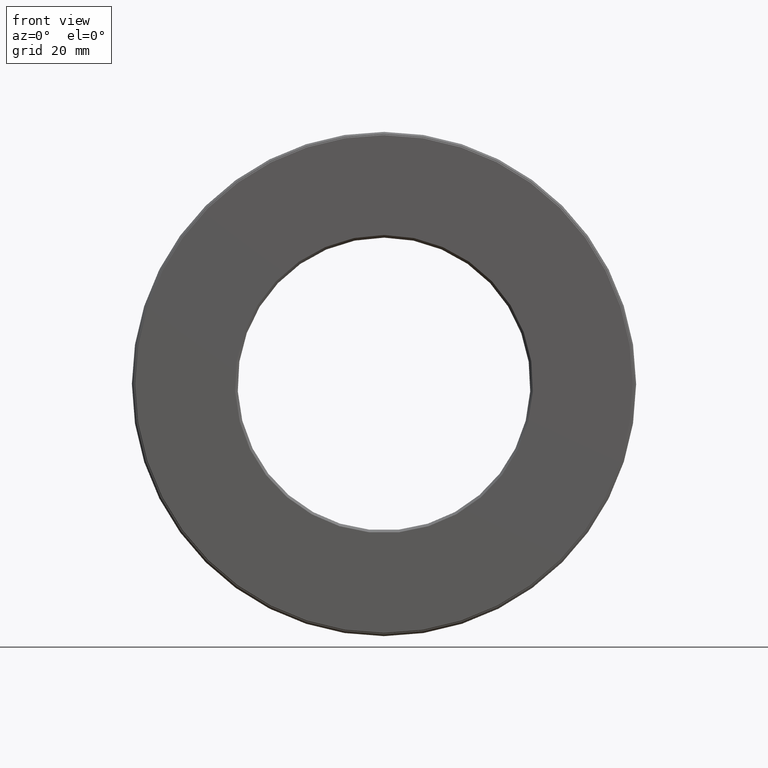
[diagram: clean part render]
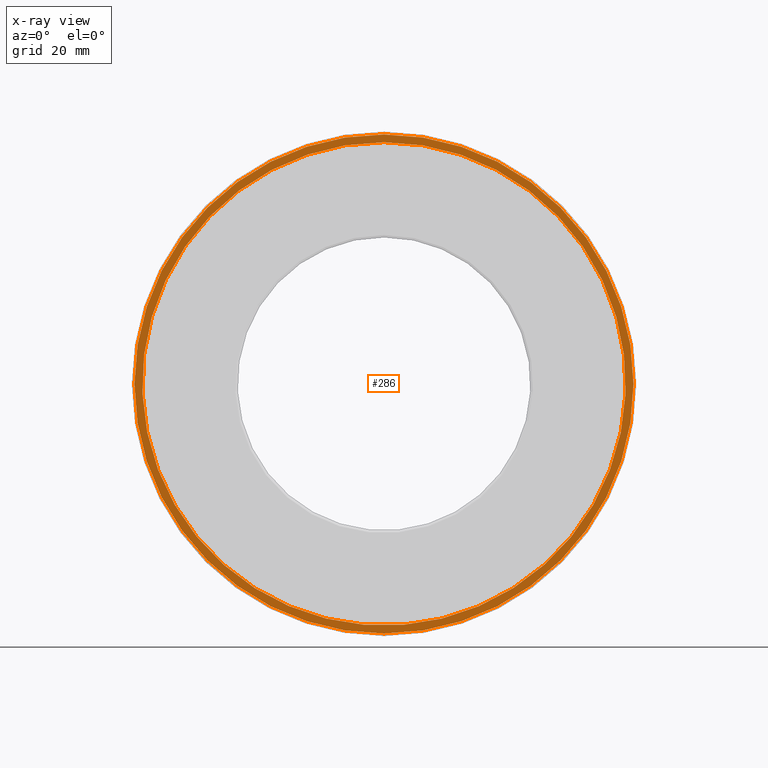
[diagram: x-ray — body ghosted, one internal face saturated and labeled with its STEP entity id]
A machine part, front view, then the same camera in x-ray: the body is ghosted and one INTERNAL B-rep face — a face not visible from any outside direction — is saturated and labeled: STEP entity #286.
In plain terms, the highlighted planar face has unit normal (-0, 1, 0).
Its self-contained STEP definition (entity closure, byte-faithful):
#23 = DIRECTION ( 'NONE',  ( 0.0000000000000000000, 0.0000000000000000000, 1.000000000000000000 ) ) ;
#34 = DIRECTION ( 'NONE',  ( 0.0000000000000000000, 0.0000000000000000000, 1.000000000000000000 ) ) ;
#36 = DIRECTION ( 'NONE',  ( -0.0000000000000000000, 1.000000000000000000, -0.0000000000000000000 ) ) ;
#71 = DIRECTION ( 'NONE',  ( -0.0000000000000000000, 1.000000000000000000, 0.0000000000000000000 ) ) ;
#76 = CARTESIAN_POINT ( 'NONE',  ( 0.0000000000000000000, 1.215000000000000100, 0.0000000000000000000 ) ) ;
#121 = CIRCLE ( 'NONE', #236, 1.917500000000000000 ) ;
#144 = AXIS2_PLACEMENT_3D ( 'NONE', #483, #71, #23 ) ;
#197 = VERTEX_POINT ( 'NONE', #225 ) ;
#205 = PLANE ( 'NONE',  #144 ) ;
#225 = CARTESIAN_POINT ( 'NONE',  ( 0.0000000000000000000, 1.215000000000000100, 1.857500000000000200 ) ) ;
#229 = EDGE_CURVE ( 'NONE', #197, #197, #469, .T. ) ;
#236 = AXIS2_PLACEMENT_3D ( 'NONE', #76, #36, #34 ) ;
#248 = DIRECTION ( 'NONE',  ( -0.0000000000000000000, 1.000000000000000000, -0.0000000000000000000 ) ) ;
#284 = VERTEX_POINT ( 'NONE', #457 ) ;
#286 = ADVANCED_FACE ( 'NONE', ( #598, #402 ), #205, .F. ) ;
#341 = EDGE_CURVE ( 'NONE', #284, #284, #121, .T. ) ;
#352 = ORIENTED_EDGE ( 'NONE', *, *, #341, .F. ) ;
#402 = FACE_BOUND ( 'NONE', #606, .T. ) ;
#457 = CARTESIAN_POINT ( 'NONE',  ( 0.0000000000000000000, 1.215000000000000100, 1.917500000000000000 ) ) ;
#469 = CIRCLE ( 'NONE', #602, 1.857500000000000200 ) ;
#483 = CARTESIAN_POINT ( 'NONE',  ( 0.0000000000000000000, 1.215000000000000100, 0.0000000000000000000 ) ) ;
#486 = EDGE_LOOP ( 'NONE', ( #352 ) ) ;
#526 = CARTESIAN_POINT ( 'NONE',  ( 0.0000000000000000000, 1.215000000000000100, 0.0000000000000000000 ) ) ;
#540 = ORIENTED_EDGE ( 'NONE', *, *, #229, .T. ) ;
#573 = DIRECTION ( 'NONE',  ( 0.0000000000000000000, 0.0000000000000000000, 1.000000000000000000 ) ) ;
#598 = FACE_OUTER_BOUND ( 'NONE', #486, .T. ) ;
#602 = AXIS2_PLACEMENT_3D ( 'NONE', #526, #248, #573 ) ;
#606 = EDGE_LOOP ( 'NONE', ( #540 ) ) ;